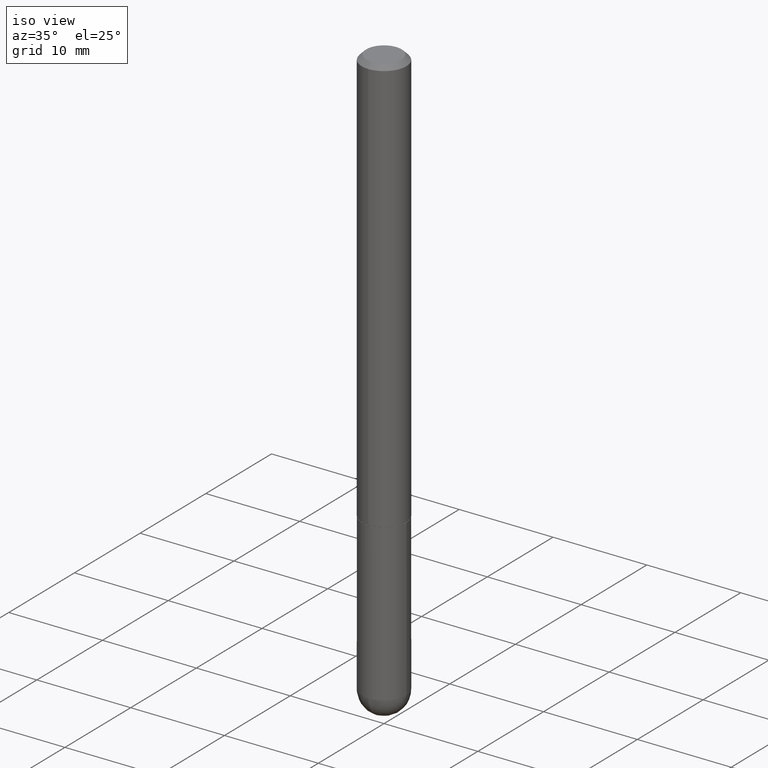
[diagram: clean part render]
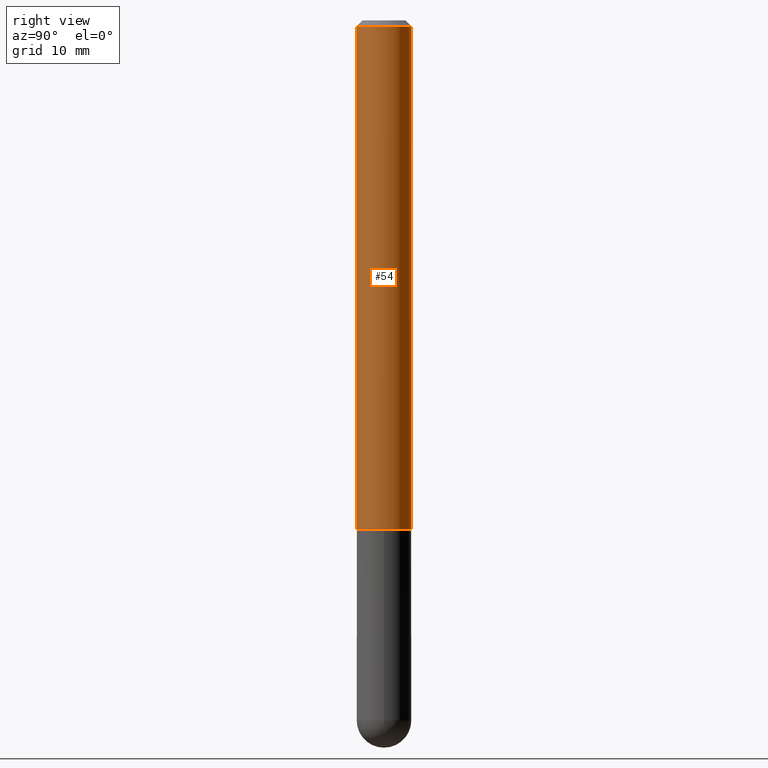
[diagram: tour spotlight — one face highlighted and labeled with its STEP entity id]
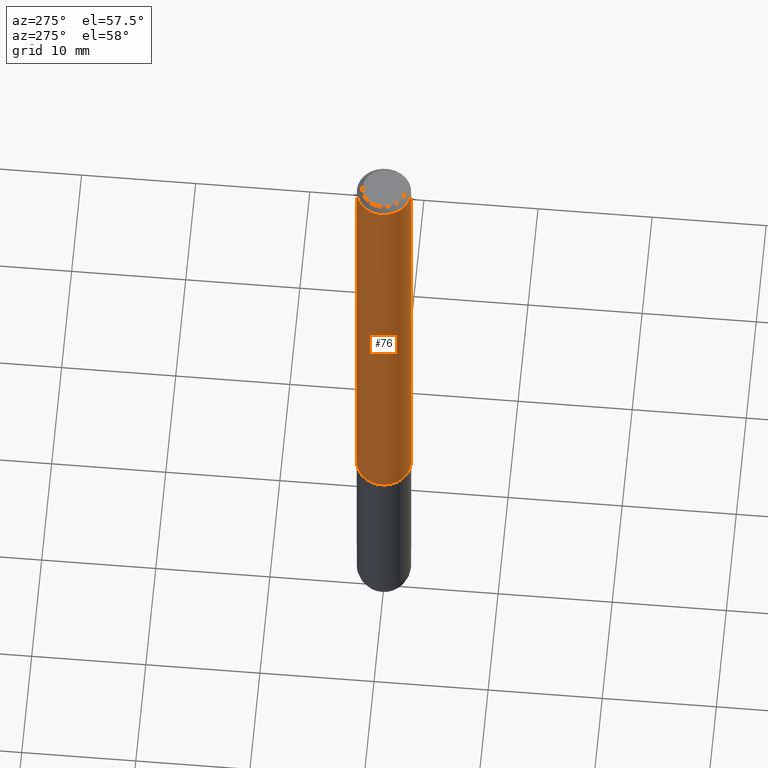
[diagram: tour spotlight — one face highlighted and labeled with its STEP entity id]
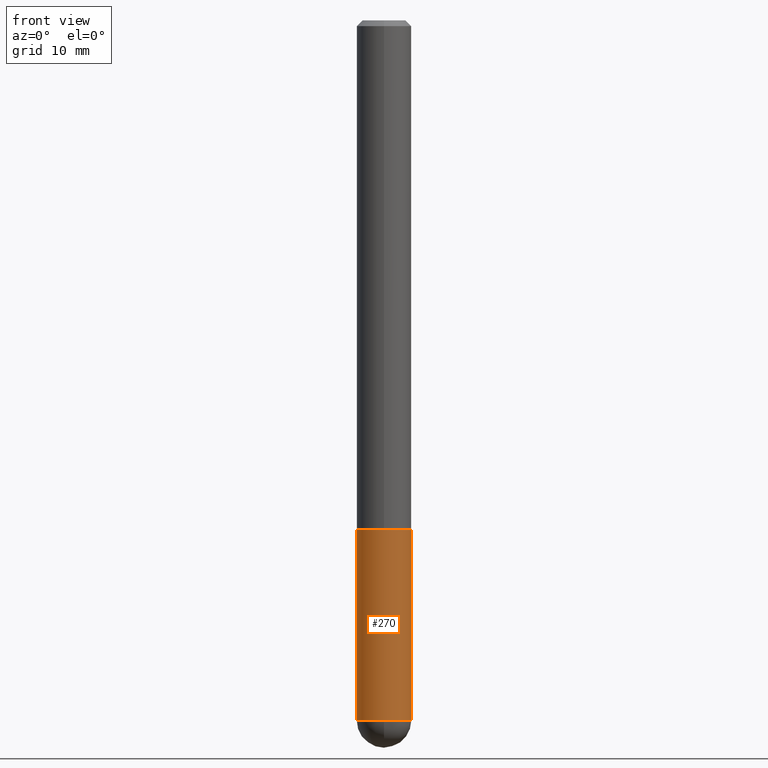
[diagram: tour spotlight — one face highlighted and labeled with its STEP entity id]
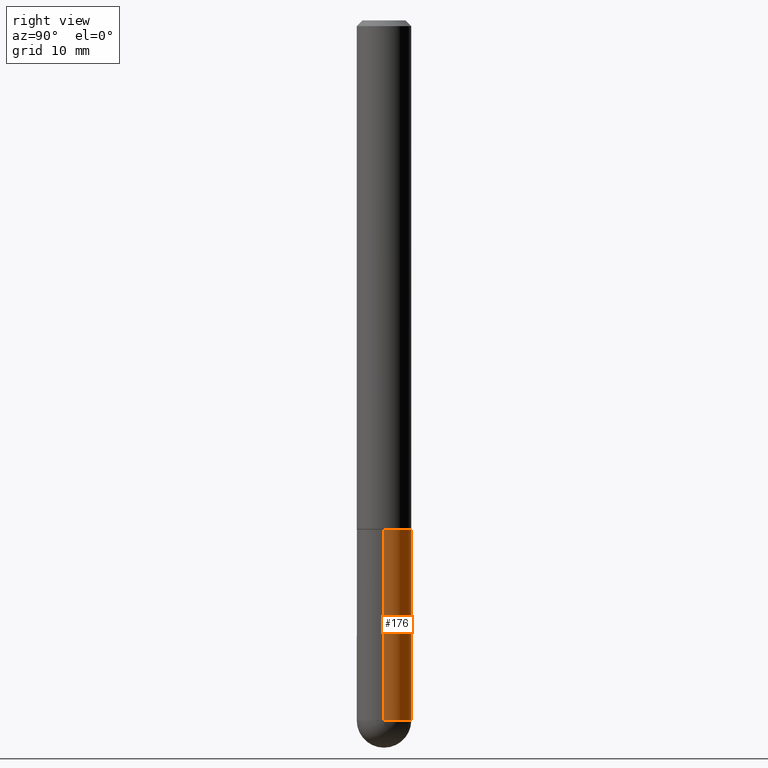
[diagram: tour spotlight — one face highlighted and labeled with its STEP entity id]
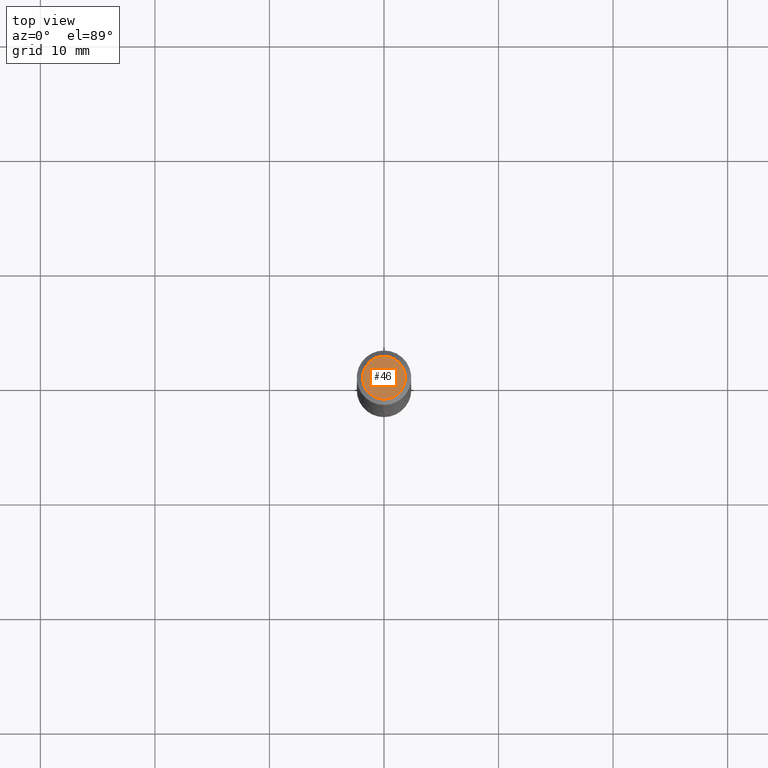
[diagram: tour spotlight — one face highlighted and labeled with its STEP entity id]
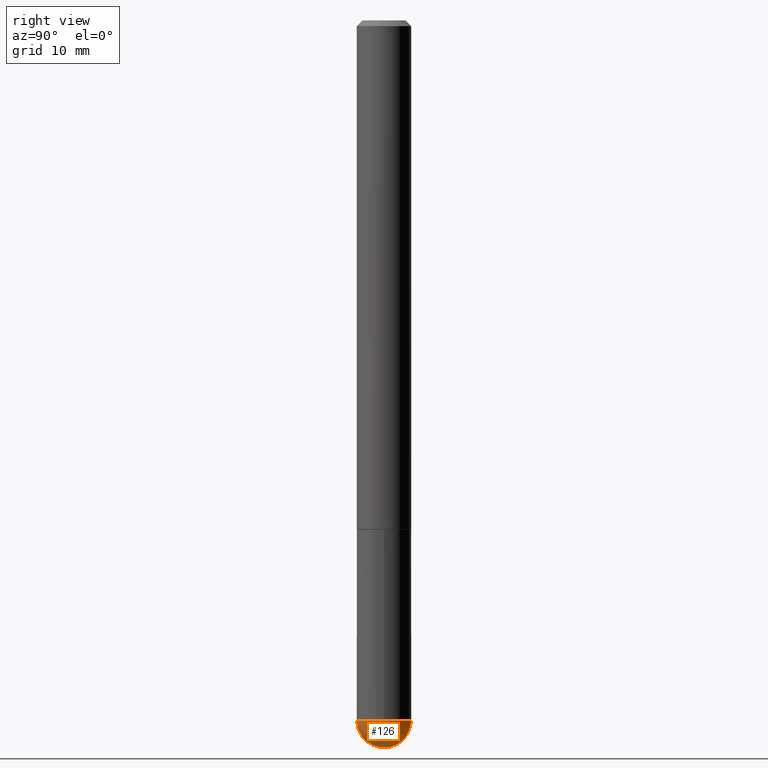
[diagram: tour spotlight — one face highlighted and labeled with its STEP entity id]
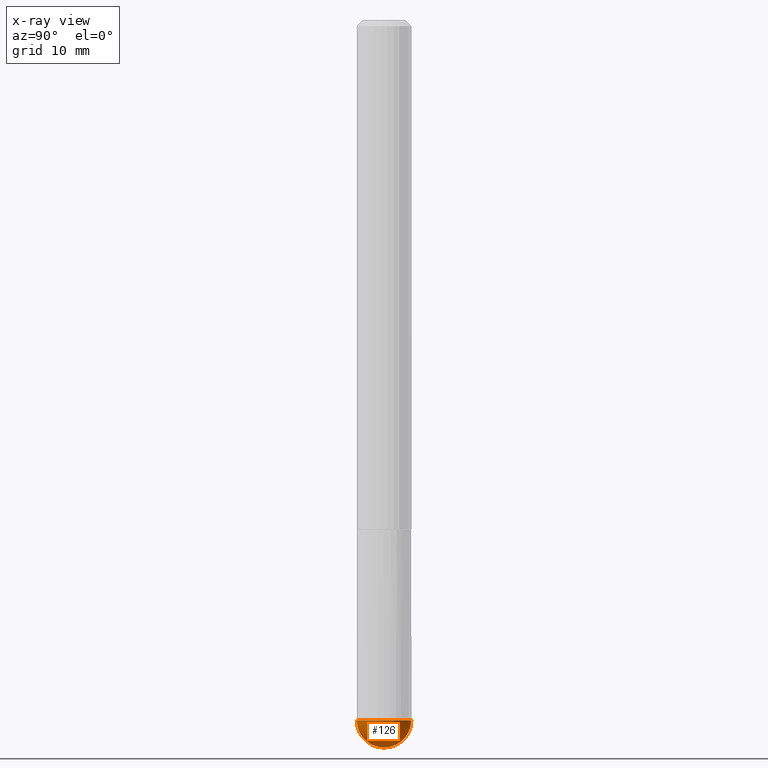
[diagram: x-ray of the same camera — body ghosted, this tour face saturated]
A machine part: a face-by-face anatomy tour. The part has 13 B-rep faces; the first image is the clean iso view, then the 6 largest visible faces are spotlighted one at a time (largest first), each with its STEP entity span.

Face 1 — right view, entity #54. In plain terms, the highlighted cylindrical surface (edge-blend (fillet) strip) has radius 2.3813 mm, axis along (-0, 0, 1).
Definition (entity closure, byte-faithful):
#14 = CYLINDRICAL_SURFACE ( 'NONE', #356, 0.09375000000000012490 ) ;
#17 = ORIENTED_EDGE ( 'NONE', *, *, #138, .T. ) ;
#21 = DIRECTION ( 'NONE',  ( -6.982962677686265922E-15, -1.000000000000000000, 2.913971193241873272E-15 ) ) ;
#25 = CARTESIAN_POINT ( 'NONE',  ( -6.431716872910806895E-16, -0.09375000000000009714, -0.01999999999999968817 ) ) ;
#29 = CIRCLE ( 'NONE', #188, 0.09375000000000023592 ) ;
#33 = EDGE_CURVE ( 'NONE', #204, #392, #393, .T. ) ;
#36 = VECTOR ( 'NONE', #115, 39.37007874015748143 ) ;
#54 = ADVANCED_FACE ( 'NONE', ( #202 ), #14, .T. ) ;
#55 = EDGE_LOOP ( 'NONE', ( #17, #121, #149, #394 ) ) ;
#62 = VECTOR ( 'NONE', #325, 39.37007874015748143 ) ;
#71 = DIRECTION ( 'NONE',  ( -6.982962677686266711E-15, -1.000000000000000000, 3.492221158921293024E-15 ) ) ;
#74 = CARTESIAN_POINT ( 'NONE',  ( 0.000000000000000000, 0.000000000000000000, 0.000000000000000000 ) ) ;
#108 = DIRECTION ( 'NONE',  ( -6.982962677686265922E-15, -1.000000000000000000, 3.505871591869136910E-15 ) ) ;
#115 = DIRECTION ( 'NONE',  ( -2.444952192585745965E-29, 3.492221158921292630E-15, 1.000000000000000000 ) ) ;
#121 = ORIENTED_EDGE ( 'NONE', *, *, #33, .T. ) ;
#124 = CIRCLE ( 'NONE', #376, 0.09375000000000002776 ) ;
#138 = EDGE_CURVE ( 'NONE', #262, #204, #29, .T. ) ;
#144 = VERTEX_POINT ( 'NONE', #25 ) ;
#149 = ORIENTED_EDGE ( 'NONE', *, *, #410, .F. ) ;
#188 = AXIS2_PLACEMENT_3D ( 'NONE', #234, #245, #21 ) ;
#202 = FACE_OUTER_BOUND ( 'NONE', #55, .T. ) ;
#204 = VERTEX_POINT ( 'NONE', #287 ) ;
#234 = CARTESIAN_POINT ( 'NONE',  ( 4.276221384832470452E-29, -6.107894806953341736E-15, -1.749000000000000110 ) ) ;
#245 = DIRECTION ( 'NONE',  ( -2.444952192585745685E-29, 3.492221158921293024E-15, 1.000000000000000000 ) ) ;
#254 = CARTESIAN_POINT ( 'NONE',  ( 6.546527510330880958E-16, 0.09374999999999995837, -0.02000000000000034736 ) ) ;
#258 = DIRECTION ( 'NONE',  ( -2.444952192585745685E-29, 3.492221158921293024E-15, 1.000000000000000000 ) ) ;
#259 = CARTESIAN_POINT ( 'NONE',  ( 6.661338147750947131E-16, 0.09375000000000012490, -3.273957336488716648E-16 ) ) ;
#261 = CARTESIAN_POINT ( 'NONE',  ( -6.546527510330883916E-16, -0.09375000000000012490, 3.273957336488716648E-16 ) ) ;
#262 = VERTEX_POINT ( 'NONE', #350 ) ;
#287 = CARTESIAN_POINT ( 'NONE',  ( 6.661338147751165054E-16, 0.09374999999999410194, -1.749000000000000332 ) ) ;
#290 = CARTESIAN_POINT ( 'NONE',  ( 4.889904385171495644E-31, -6.984442317842590979E-17, -0.02000000000000001776 ) ) ;
#312 = LINE ( 'NONE', #261, #62 ) ;
#325 = DIRECTION ( 'NONE',  ( -2.444952192585745965E-29, 3.492221158921292630E-15, 1.000000000000000000 ) ) ;
#326 = DIRECTION ( 'NONE',  ( -2.444952192585745685E-29, 3.492221158921293024E-15, 1.000000000000000000 ) ) ;
#350 = CARTESIAN_POINT ( 'NONE',  ( -6.546527510330463847E-16, -0.09375000000000634215, -1.748999999999999888 ) ) ;
#356 = AXIS2_PLACEMENT_3D ( 'NONE', #74, #326, #71 ) ;
#376 = AXIS2_PLACEMENT_3D ( 'NONE', #290, #258, #108 ) ;
#388 = EDGE_CURVE ( 'NONE', #262, #144, #312, .T. ) ;
#392 = VERTEX_POINT ( 'NONE', #254 ) ;
#393 = LINE ( 'NONE', #259, #36 ) ;
#394 = ORIENTED_EDGE ( 'NONE', *, *, #388, .F. ) ;
#410 = EDGE_CURVE ( 'NONE', #144, #392, #124, .T. ) ;

Face 2 — auxiliary view, entity #76. In plain terms, the highlighted cylindrical surface (edge-blend (fillet) strip) has radius 2.3813 mm, axis along (-0, 0, 1).
Definition (entity closure, byte-faithful):
#15 = DIRECTION ( 'NONE',  ( -2.444952192585745685E-29, 3.492221158921293024E-15, 1.000000000000000000 ) ) ;
#25 = CARTESIAN_POINT ( 'NONE',  ( -6.431716872910806895E-16, -0.09375000000000009714, -0.01999999999999968817 ) ) ;
#33 = EDGE_CURVE ( 'NONE', #204, #392, #393, .T. ) ;
#36 = VECTOR ( 'NONE', #115, 39.37007874015748143 ) ;
#47 = ORIENTED_EDGE ( 'NONE', *, *, #132, .T. ) ;
#57 = CYLINDRICAL_SURFACE ( 'NONE', #146, 0.09375000000000012490 ) ;
#62 = VECTOR ( 'NONE', #325, 39.37007874015748143 ) ;
#63 = EDGE_CURVE ( 'NONE', #392, #144, #230, .T. ) ;
#64 = ORIENTED_EDGE ( 'NONE', *, *, #33, .F. ) ;
#76 = ADVANCED_FACE ( 'NONE', ( #184 ), #57, .T. ) ;
#80 = ORIENTED_EDGE ( 'NONE', *, *, #388, .T. ) ;
#87 = DIRECTION ( 'NONE',  ( -2.444952192585745685E-29, 3.492221158921293024E-15, 1.000000000000000000 ) ) ;
#91 = AXIS2_PLACEMENT_3D ( 'NONE', #318, #169, #297 ) ;
#99 = ORIENTED_EDGE ( 'NONE', *, *, #63, .F. ) ;
#115 = DIRECTION ( 'NONE',  ( -2.444952192585745965E-29, 3.492221158921292630E-15, 1.000000000000000000 ) ) ;
#123 = CIRCLE ( 'NONE', #205, 0.09375000000000023592 ) ;
#132 = EDGE_CURVE ( 'NONE', #204, #262, #123, .T. ) ;
#144 = VERTEX_POINT ( 'NONE', #25 ) ;
#146 = AXIS2_PLACEMENT_3D ( 'NONE', #333, #15, #404 ) ;
#150 = CARTESIAN_POINT ( 'NONE',  ( 4.276221384832470452E-29, -6.107894806953341736E-15, -1.749000000000000110 ) ) ;
#169 = DIRECTION ( 'NONE',  ( -2.444952192585745685E-29, 3.492221158921293024E-15, 1.000000000000000000 ) ) ;
#184 = FACE_OUTER_BOUND ( 'NONE', #274, .T. ) ;
#204 = VERTEX_POINT ( 'NONE', #287 ) ;
#205 = AXIS2_PLACEMENT_3D ( 'NONE', #150, #87, #403 ) ;
#230 = CIRCLE ( 'NONE', #91, 0.09375000000000002776 ) ;
#254 = CARTESIAN_POINT ( 'NONE',  ( 6.546527510330880958E-16, 0.09374999999999995837, -0.02000000000000034736 ) ) ;
#259 = CARTESIAN_POINT ( 'NONE',  ( 6.661338147750947131E-16, 0.09375000000000012490, -3.273957336488716648E-16 ) ) ;
#261 = CARTESIAN_POINT ( 'NONE',  ( -6.546527510330883916E-16, -0.09375000000000012490, 3.273957336488716648E-16 ) ) ;
#262 = VERTEX_POINT ( 'NONE', #350 ) ;
#274 = EDGE_LOOP ( 'NONE', ( #64, #47, #80, #99 ) ) ;
#287 = CARTESIAN_POINT ( 'NONE',  ( 6.661338147751165054E-16, 0.09374999999999410194, -1.749000000000000332 ) ) ;
#297 = DIRECTION ( 'NONE',  ( -6.982962677686265922E-15, -1.000000000000000000, 3.505871591869136910E-15 ) ) ;
#312 = LINE ( 'NONE', #261, #62 ) ;
#318 = CARTESIAN_POINT ( 'NONE',  ( 4.889904385171495644E-31, -6.984442317842590979E-17, -0.02000000000000001776 ) ) ;
#325 = DIRECTION ( 'NONE',  ( -2.444952192585745965E-29, 3.492221158921292630E-15, 1.000000000000000000 ) ) ;
#333 = CARTESIAN_POINT ( 'NONE',  ( 0.000000000000000000, 0.000000000000000000, 0.000000000000000000 ) ) ;
#350 = CARTESIAN_POINT ( 'NONE',  ( -6.546527510330463847E-16, -0.09375000000000634215, -1.748999999999999888 ) ) ;
#388 = EDGE_CURVE ( 'NONE', #262, #144, #312, .T. ) ;
#392 = VERTEX_POINT ( 'NONE', #254 ) ;
#393 = LINE ( 'NONE', #259, #36 ) ;
#403 = DIRECTION ( 'NONE',  ( -6.982962677686265922E-15, -1.000000000000000000, 2.913971193241873272E-15 ) ) ;
#404 = DIRECTION ( 'NONE',  ( -6.982962677686266711E-15, -1.000000000000000000, 3.492221158921293024E-15 ) ) ;

Face 3 — front view, entity #270. In plain terms, the highlighted cylindrical surface (edge-blend (fillet) strip) has radius 2.3812 mm, axis along (-0, 0, 1).
Definition (entity closure, byte-faithful):
#7 = DIRECTION ( 'NONE',  ( -2.445468806185136597E-29, 3.491481338843145583E-15, 1.000000000000000000 ) ) ;
#8 = CARTESIAN_POINT ( 'NONE',  ( 5.884409314882984936E-29, -8.401376971591319218E-15, -2.406250000000000000 ) ) ;
#9 = ORIENTED_EDGE ( 'NONE', *, *, #43, .T. ) ;
#12 = LINE ( 'NONE', #177, #18 ) ;
#18 = VECTOR ( 'NONE', #264, 39.37007874015748143 ) ;
#40 = CARTESIAN_POINT ( 'NONE',  ( 5.884409314882984936E-29, -8.401376971591319218E-15, -2.406250000000000000 ) ) ;
#43 = EDGE_CURVE ( 'NONE', #170, #268, #12, .T. ) ;
#56 = AXIS2_PLACEMENT_3D ( 'NONE', #8, #111, #65 ) ;
#61 = LINE ( 'NONE', #405, #104 ) ;
#65 = DIRECTION ( 'NONE',  ( 1.000000000000000000, -6.982962677686273810E-15, 0.000000000000000000 ) ) ;
#67 = CIRCLE ( 'NONE', #56, 0.09374999999999998612 ) ;
#78 = VERTEX_POINT ( 'NONE', #374 ) ;
#102 = DIRECTION ( 'NONE',  ( -2.445468806185136597E-29, 3.491481338843145583E-15, 1.000000000000000000 ) ) ;
#104 = VECTOR ( 'NONE', #243, 39.37007874015748143 ) ;
#105 = EDGE_CURVE ( 'NONE', #78, #260, #61, .T. ) ;
#111 = DIRECTION ( 'NONE',  ( -2.445468806185136597E-29, 3.491481338843145583E-15, 1.000000000000000000 ) ) ;
#140 = CYLINDRICAL_SURFACE ( 'NONE', #265, 0.09374999999999998612 ) ;
#147 = CIRCLE ( 'NONE', #157, 0.09374999999999998612 ) ;
#157 = AXIS2_PLACEMENT_3D ( 'NONE', #40, #164, #386 ) ;
#164 = DIRECTION ( 'NONE',  ( -2.445468806185136597E-29, 3.491481338843145583E-15, 1.000000000000000000 ) ) ;
#170 = VERTEX_POINT ( 'NONE', #211 ) ;
#177 = CARTESIAN_POINT ( 'NONE',  ( 0.09374999999999998612, -6.546527510330874055E-16, 4.571415727308689105E-30 ) ) ;
#178 = ORIENTED_EDGE ( 'NONE', *, *, #315, .T. ) ;
#180 = EDGE_LOOP ( 'NONE', ( #368, #269, #178, #9, #349 ) ) ;
#196 = CARTESIAN_POINT ( 'NONE',  ( -0.09375000000000001388, -6.589600842508318415E-15, -1.750000000000000222 ) ) ;
#211 = CARTESIAN_POINT ( 'NONE',  ( 0.09374999999999998612, -7.910387408316499054E-15, -2.406250000000000000 ) ) ;
#212 = CARTESIAN_POINT ( 'NONE',  ( 4.279570410823989044E-29, -6.110092342975505460E-15, -1.750000000000000222 ) ) ;
#222 = DIRECTION ( 'NONE',  ( 1.000000000000000000, -6.982962677686261189E-15, 0.000000000000000000 ) ) ;
#227 = CARTESIAN_POINT ( 'NONE',  ( 0.09375000000000001388, -6.764745094008592175E-15, -1.750000000000000222 ) ) ;
#232 = EDGE_CURVE ( 'NONE', #78, #354, #67, .T. ) ;
#243 = DIRECTION ( 'NONE',  ( -2.445468806185136877E-29, 3.491481338843145188E-15, 1.000000000000000000 ) ) ;
#246 = EDGE_CURVE ( 'NONE', #260, #268, #346, .T. ) ;
#257 = CARTESIAN_POINT ( 'NONE',  ( 0.000000000000000000, 0.000000000000000000, 0.000000000000000000 ) ) ;
#260 = VERTEX_POINT ( 'NONE', #196 ) ;
#264 = DIRECTION ( 'NONE',  ( -2.445468806185136877E-29, 3.491481338843145188E-15, 1.000000000000000000 ) ) ;
#265 = AXIS2_PLACEMENT_3D ( 'NONE', #257, #7, #317 ) ;
#268 = VERTEX_POINT ( 'NONE', #227 ) ;
#269 = ORIENTED_EDGE ( 'NONE', *, *, #232, .T. ) ;
#270 = ADVANCED_FACE ( 'NONE', ( #389 ), #140, .T. ) ;
#273 = CARTESIAN_POINT ( 'NONE',  ( -6.661338147750375207E-16, -0.09375000000000877076, -2.406249999999999556 ) ) ;
#315 = EDGE_CURVE ( 'NONE', #354, #170, #147, .T. ) ;
#317 = DIRECTION ( 'NONE',  ( 1.000000000000000000, -6.982962677686266711E-15, 4.876176775795935793E-29 ) ) ;
#346 = CIRCLE ( 'NONE', #395, 0.09375000000000001388 ) ;
#349 = ORIENTED_EDGE ( 'NONE', *, *, #246, .F. ) ;
#354 = VERTEX_POINT ( 'NONE', #273 ) ;
#368 = ORIENTED_EDGE ( 'NONE', *, *, #105, .F. ) ;
#374 = CARTESIAN_POINT ( 'NONE',  ( -0.09374999999999998612, -6.589600842508318415E-15, -2.406250000000000000 ) ) ;
#386 = DIRECTION ( 'NONE',  ( 1.000000000000000000, -6.982962677686273810E-15, 0.000000000000000000 ) ) ;
#389 = FACE_OUTER_BOUND ( 'NONE', #180, .T. ) ;
#395 = AXIS2_PLACEMENT_3D ( 'NONE', #212, #102, #222 ) ;
#405 = CARTESIAN_POINT ( 'NONE',  ( -0.09374999999999998612, 6.661338147750938256E-16, -4.611501647113973295E-30 ) ) ;

Face 4 — right view, entity #176. In plain terms, the highlighted cylindrical surface (edge-blend (fillet) strip) has radius 2.3812 mm, axis along (-0, 0, 1).
Definition (entity closure, byte-faithful):
#6 = CIRCLE ( 'NONE', #236, 0.09374999999999998612 ) ;
#10 = ORIENTED_EDGE ( 'NONE', *, *, #105, .T. ) ;
#12 = LINE ( 'NONE', #177, #18 ) ;
#16 = CARTESIAN_POINT ( 'NONE',  ( 4.279570410823989044E-29, -6.110092342975505460E-15, -1.750000000000000222 ) ) ;
#18 = VECTOR ( 'NONE', #264, 39.37007874015748143 ) ;
#38 = CARTESIAN_POINT ( 'NONE',  ( 5.884409314882984936E-29, -8.401376971591319218E-15, -2.406250000000000000 ) ) ;
#43 = EDGE_CURVE ( 'NONE', #170, #268, #12, .T. ) ;
#52 = ORIENTED_EDGE ( 'NONE', *, *, #402, .T. ) ;
#53 = CARTESIAN_POINT ( 'NONE',  ( 0.000000000000000000, 0.000000000000000000, 0.000000000000000000 ) ) ;
#61 = LINE ( 'NONE', #405, #104 ) ;
#72 = CARTESIAN_POINT ( 'NONE',  ( 6.546527510331454854E-16, 0.09374999999999149292, -2.406250000000000444 ) ) ;
#78 = VERTEX_POINT ( 'NONE', #374 ) ;
#94 = DIRECTION ( 'NONE',  ( 1.000000000000000000, -6.982962677686261189E-15, 0.000000000000000000 ) ) ;
#100 = DIRECTION ( 'NONE',  ( -2.445468806185136597E-29, 3.491481338843145583E-15, 1.000000000000000000 ) ) ;
#104 = VECTOR ( 'NONE', #243, 39.37007874015748143 ) ;
#105 = EDGE_CURVE ( 'NONE', #78, #260, #61, .T. ) ;
#125 = FACE_OUTER_BOUND ( 'NONE', #408, .T. ) ;
#137 = DIRECTION ( 'NONE',  ( 1.000000000000000000, -6.982962677686273810E-15, 0.000000000000000000 ) ) ;
#165 = CARTESIAN_POINT ( 'NONE',  ( 5.884409314882984936E-29, -8.401376971591319218E-15, -2.406250000000000000 ) ) ;
#170 = VERTEX_POINT ( 'NONE', #211 ) ;
#175 = ORIENTED_EDGE ( 'NONE', *, *, #238, .T. ) ;
#176 = ADVANCED_FACE ( 'NONE', ( #125 ), #240, .T. ) ;
#177 = CARTESIAN_POINT ( 'NONE',  ( 0.09374999999999998612, -6.546527510330874055E-16, 4.571415727308689105E-30 ) ) ;
#196 = CARTESIAN_POINT ( 'NONE',  ( -0.09375000000000001388, -6.589600842508318415E-15, -1.750000000000000222 ) ) ;
#211 = CARTESIAN_POINT ( 'NONE',  ( 0.09374999999999998612, -7.910387408316499054E-15, -2.406250000000000000 ) ) ;
#216 = DIRECTION ( 'NONE',  ( 1.000000000000000000, -6.982962677686266711E-15, 4.876176775795935793E-29 ) ) ;
#220 = CIRCLE ( 'NONE', #314, 0.09374999999999998612 ) ;
#226 = DIRECTION ( 'NONE',  ( 1.000000000000000000, -6.982962677686273810E-15, 0.000000000000000000 ) ) ;
#227 = CARTESIAN_POINT ( 'NONE',  ( 0.09375000000000001388, -6.764745094008592175E-15, -1.750000000000000222 ) ) ;
#235 = DIRECTION ( 'NONE',  ( -2.445468806185136597E-29, 3.491481338843145583E-15, 1.000000000000000000 ) ) ;
#236 = AXIS2_PLACEMENT_3D ( 'NONE', #38, #100, #137 ) ;
#238 = EDGE_CURVE ( 'NONE', #295, #78, #6, .T. ) ;
#240 = CYLINDRICAL_SURFACE ( 'NONE', #364, 0.09374999999999998612 ) ;
#243 = DIRECTION ( 'NONE',  ( -2.445468806185136877E-29, 3.491481338843145188E-15, 1.000000000000000000 ) ) ;
#260 = VERTEX_POINT ( 'NONE', #196 ) ;
#264 = DIRECTION ( 'NONE',  ( -2.445468806185136877E-29, 3.491481338843145188E-15, 1.000000000000000000 ) ) ;
#267 = DIRECTION ( 'NONE',  ( -2.445468806185136597E-29, 3.491481338843145583E-15, 1.000000000000000000 ) ) ;
#268 = VERTEX_POINT ( 'NONE', #227 ) ;
#295 = VERTEX_POINT ( 'NONE', #72 ) ;
#314 = AXIS2_PLACEMENT_3D ( 'NONE', #165, #267, #226 ) ;
#321 = EDGE_CURVE ( 'NONE', #268, #260, #385, .T. ) ;
#334 = ORIENTED_EDGE ( 'NONE', *, *, #321, .F. ) ;
#359 = ORIENTED_EDGE ( 'NONE', *, *, #43, .F. ) ;
#364 = AXIS2_PLACEMENT_3D ( 'NONE', #53, #377, #216 ) ;
#374 = CARTESIAN_POINT ( 'NONE',  ( -0.09374999999999998612, -6.589600842508318415E-15, -2.406250000000000000 ) ) ;
#377 = DIRECTION ( 'NONE',  ( -2.445468806185136597E-29, 3.491481338843145583E-15, 1.000000000000000000 ) ) ;
#385 = CIRCLE ( 'NONE', #399, 0.09375000000000001388 ) ;
#399 = AXIS2_PLACEMENT_3D ( 'NONE', #16, #235, #94 ) ;
#402 = EDGE_CURVE ( 'NONE', #170, #295, #220, .T. ) ;
#405 = CARTESIAN_POINT ( 'NONE',  ( -0.09374999999999998612, 6.661338147750938256E-16, -4.611501647113973295E-30 ) ) ;
#408 = EDGE_LOOP ( 'NONE', ( #175, #10, #334, #359, #52 ) ) ;

Face 5 — top view, entity #46. In plain terms, the highlighted planar face has unit normal (0, -0, -1).
Definition (entity closure, byte-faithful):
#3 = DIRECTION ( 'NONE',  ( -2.444952192585745685E-29, 3.492221158921293024E-15, 1.000000000000000000 ) ) ;
#26 = CARTESIAN_POINT ( 'NONE',  ( 1.030290814848942582E-46, -1.471604800440920804E-32, -4.213950759337024545E-18 ) ) ;
#35 = CARTESIAN_POINT ( 'NONE',  ( 5.848231242562252906E-16, 0.07375000000000006550, -2.617652612297826062E-16 ) ) ;
#46 = ADVANCED_FACE ( 'NONE', ( #110 ), #233, .F. ) ;
#82 = CIRCLE ( 'NONE', #382, 0.07375000000000006550 ) ;
#110 = FACE_OUTER_BOUND ( 'NONE', #351, .T. ) ;
#112 = ORIENTED_EDGE ( 'NONE', *, *, #263, .T. ) ;
#173 = DIRECTION ( 'NONE',  ( 2.444952192585745965E-29, -3.492221158921292630E-15, -1.000000000000000000 ) ) ;
#217 = DIRECTION ( 'NONE',  ( -2.444952192585745685E-29, 3.492221158921293024E-15, 1.000000000000000000 ) ) ;
#225 = CARTESIAN_POINT ( 'NONE',  ( 1.030290814848942582E-46, -1.471604800440920804E-32, -4.213950759337024545E-18 ) ) ;
#233 = PLANE ( 'NONE',  #319 ) ;
#237 = VERTEX_POINT ( 'NONE', #35 ) ;
#263 = EDGE_CURVE ( 'NONE', #331, #237, #82, .T. ) ;
#288 = DIRECTION ( 'NONE',  ( -6.982962677686265922E-15, -1.000000000000000000, 3.492221158921293419E-15 ) ) ;
#299 = DIRECTION ( 'NONE',  ( 6.982962677686265922E-15, 1.000000000000000000, -3.492221158921292630E-15 ) ) ;
#306 = CARTESIAN_POINT ( 'NONE',  ( -5.745667073133657526E-16, -0.07375000000000006550, 2.533373597111085586E-16 ) ) ;
#319 = AXIS2_PLACEMENT_3D ( 'NONE', #360, #173, #299 ) ;
#331 = VERTEX_POINT ( 'NONE', #306 ) ;
#336 = AXIS2_PLACEMENT_3D ( 'NONE', #26, #217, #341 ) ;
#341 = DIRECTION ( 'NONE',  ( -6.982962677686265922E-15, -1.000000000000000000, 3.492221158921293419E-15 ) ) ;
#342 = CIRCLE ( 'NONE', #336, 0.07375000000000006550 ) ;
#345 = EDGE_CURVE ( 'NONE', #237, #331, #342, .T. ) ;
#351 = EDGE_LOOP ( 'NONE', ( #361, #112 ) ) ;
#360 = CARTESIAN_POINT ( 'NONE',  ( 5.149934974793625841E-16, 0.07375000000000006550, -2.596582858501141066E-16 ) ) ;
#361 = ORIENTED_EDGE ( 'NONE', *, *, #345, .T. ) ;
#382 = AXIS2_PLACEMENT_3D ( 'NONE', #225, #3, #288 ) ;

Face 6 — right view, entity #126. An x-ray twin of the same camera follows (body ghosted, this face saturated) — the face is partly hidden behind the body. In plain terms, the highlighted spherical surface has radius 2.3813 mm.
Definition (entity closure, byte-faithful):
#40 = CARTESIAN_POINT ( 'NONE',  ( 5.884409314882984936E-29, -8.401376971591319218E-15, -2.406250000000000000 ) ) ;
#72 = CARTESIAN_POINT ( 'NONE',  ( 6.546527510331454854E-16, 0.09374999999999149292, -2.406250000000000444 ) ) ;
#79 = ORIENTED_EDGE ( 'NONE', *, *, #315, .F. ) ;
#88 = CARTESIAN_POINT ( 'NONE',  ( 5.553289536969099810E-29, -8.875559339731369515E-15, -2.406250000000000000 ) ) ;
#89 = DIRECTION ( 'NONE',  ( -7.105427357601001070E-15, -1.000000000000000000, 0.000000000000000000 ) ) ;
#113 = EDGE_LOOP ( 'NONE', ( #398, #117, #116, #79 ) ) ;
#116 = ORIENTED_EDGE ( 'NONE', *, *, #402, .F. ) ;
#117 = ORIENTED_EDGE ( 'NONE', *, *, #167, .T. ) ;
#126 = ADVANCED_FACE ( 'NONE', ( #303 ), #305, .T. ) ;
#147 = CIRCLE ( 'NONE', #157, 0.09374999999999998612 ) ;
#151 = AXIS2_PLACEMENT_3D ( 'NONE', #88, #272, #400 ) ;
#153 = CARTESIAN_POINT ( 'NONE',  ( 5.553289536969099810E-29, -8.875559339731369515E-15, -2.406250000000000000 ) ) ;
#157 = AXIS2_PLACEMENT_3D ( 'NONE', #40, #164, #386 ) ;
#158 = DIRECTION ( 'NONE',  ( 6.982962677686265133E-15, 1.000000000000000000, -2.913971193241872483E-15 ) ) ;
#164 = DIRECTION ( 'NONE',  ( -2.445468806185136597E-29, 3.491481338843145583E-15, 1.000000000000000000 ) ) ;
#165 = CARTESIAN_POINT ( 'NONE',  ( 5.884409314882984936E-29, -8.401376971591319218E-15, -2.406250000000000000 ) ) ;
#167 = EDGE_CURVE ( 'NONE', #327, #295, #253, .T. ) ;
#168 = AXIS2_PLACEMENT_3D ( 'NONE', #210, #181, #89 ) ;
#170 = VERTEX_POINT ( 'NONE', #211 ) ;
#181 = DIRECTION ( 'NONE',  ( -1.000000000000000000, 7.105427357601001070E-15, -4.926315508542082329E-29 ) ) ;
#210 = CARTESIAN_POINT ( 'NONE',  ( 5.553289536969099810E-29, -8.875559339731369515E-15, -2.406250000000000000 ) ) ;
#211 = CARTESIAN_POINT ( 'NONE',  ( 0.09374999999999998612, -7.910387408316499054E-15, -2.406250000000000000 ) ) ;
#215 = CARTESIAN_POINT ( 'NONE',  ( 5.786560829529485345E-29, -9.197145183376910845E-15, -2.500000000000000000 ) ) ;
#220 = CIRCLE ( 'NONE', #314, 0.09374999999999998612 ) ;
#226 = DIRECTION ( 'NONE',  ( 1.000000000000000000, -6.982962677686273810E-15, 0.000000000000000000 ) ) ;
#253 = CIRCLE ( 'NONE', #151, 0.09375000000000026368 ) ;
#267 = DIRECTION ( 'NONE',  ( -2.445468806185136597E-29, 3.491481338843145583E-15, 1.000000000000000000 ) ) ;
#272 = DIRECTION ( 'NONE',  ( 1.000000000000000000, -6.982962677686265922E-15, 4.883557194083112340E-29 ) ) ;
#273 = CARTESIAN_POINT ( 'NONE',  ( -6.661338147750375207E-16, -0.09375000000000877076, -2.406249999999999556 ) ) ;
#294 = CIRCLE ( 'NONE', #168, 0.09375000000000026368 ) ;
#295 = VERTEX_POINT ( 'NONE', #72 ) ;
#300 = DIRECTION ( 'NONE',  ( -1.000000000000000000, 6.982962677686265133E-15, -4.883557194083112901E-29 ) ) ;
#303 = FACE_OUTER_BOUND ( 'NONE', #113, .T. ) ;
#305 = SPHERICAL_SURFACE ( 'NONE', #329, 0.09375000000000026368 ) ;
#314 = AXIS2_PLACEMENT_3D ( 'NONE', #165, #267, #226 ) ;
#315 = EDGE_CURVE ( 'NONE', #354, #170, #147, .T. ) ;
#327 = VERTEX_POINT ( 'NONE', #215 ) ;
#329 = AXIS2_PLACEMENT_3D ( 'NONE', #153, #300, #158 ) ;
#354 = VERTEX_POINT ( 'NONE', #273 ) ;
#373 = EDGE_CURVE ( 'NONE', #327, #354, #294, .T. ) ;
#386 = DIRECTION ( 'NONE',  ( 1.000000000000000000, -6.982962677686273810E-15, 0.000000000000000000 ) ) ;
#398 = ORIENTED_EDGE ( 'NONE', *, *, #373, .F. ) ;
#400 = DIRECTION ( 'NONE',  ( 6.982962677686265133E-15, 1.000000000000000000, 0.000000000000000000 ) ) ;
#402 = EDGE_CURVE ( 'NONE', #170, #295, #220, .T. ) ;